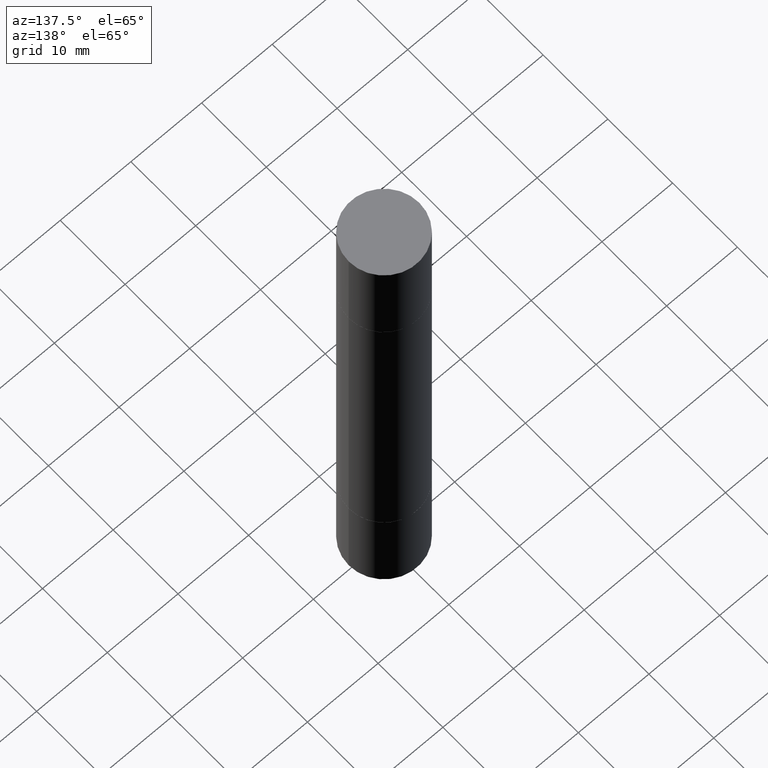
[diagram: clean part render]
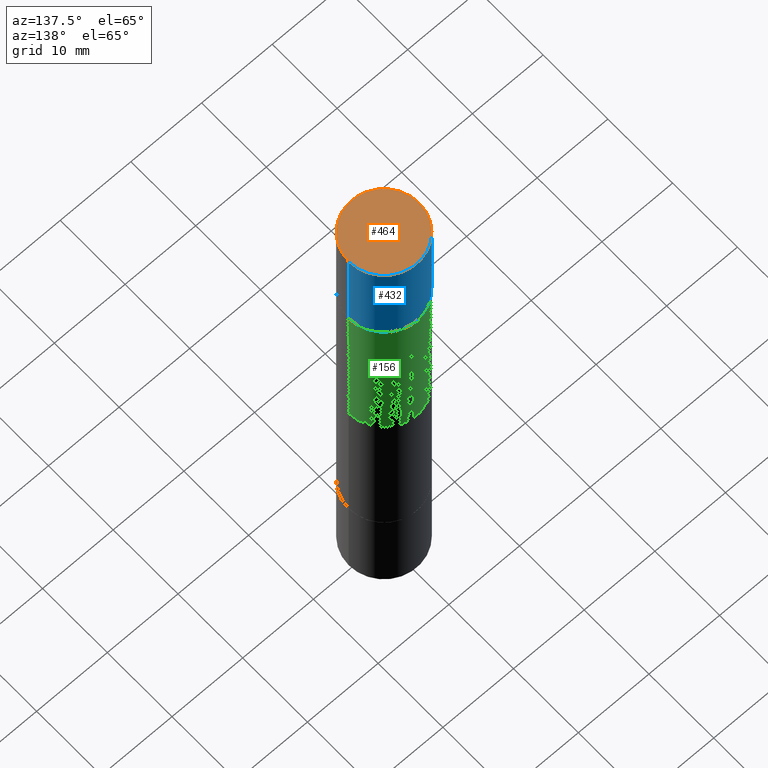
[diagram: same view with three faces highlighted in distinct colors, each labeled with its STEP entity id]
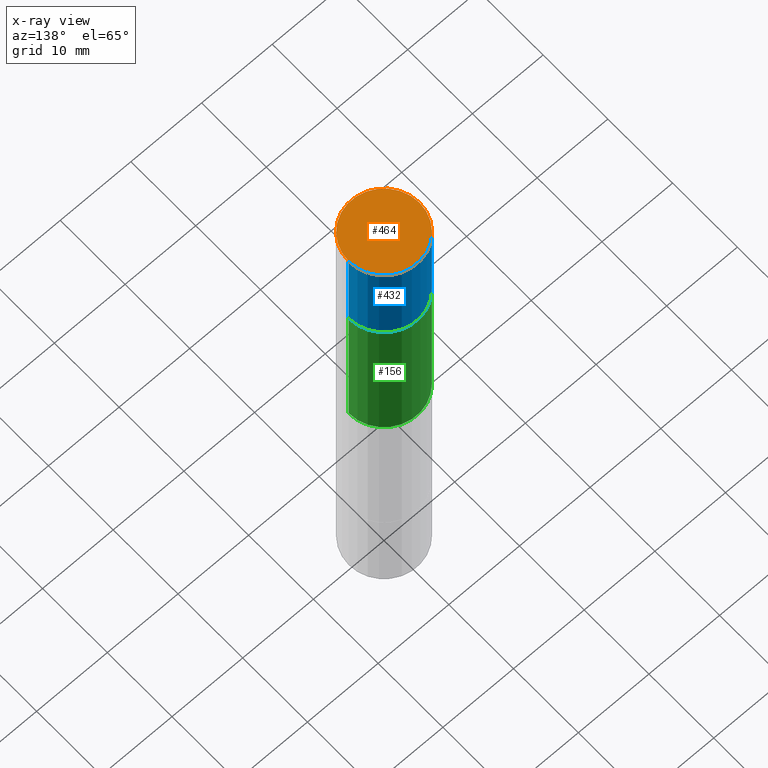
[diagram: x-ray of the same camera — body ghosted, the three highlighted faces saturated]
A machine part, auxiliary view with three faces highlighted in distinct colors.
The next image is the same camera in x-ray (body ghosted, the three faces saturated) — at least one of them is partly hidden behind the body in this view.
Their STEP definitions:

[orange] entity #464 — the highlighted planar face has unit normal (0, 0, 1).
#97 = CARTESIAN_POINT ( 'NONE',  ( 0.1968500000000000250, -1.372515848155552113E-15, 5.463695987328526437E-16 ) ) ;
#110 = VERTEX_POINT ( 'NONE', #193 ) ;
#111 = DIRECTION ( 'NONE',  ( 2.438088387897959769E-29, 3.492890411551753071E-15, 1.000000000000000000 ) ) ;
#121 = EDGE_LOOP ( 'NONE', ( #541, #170 ) ) ;
#124 = CARTESIAN_POINT ( 'NONE',  ( 7.220980290903470182E-29, 2.080354946989631982E-18, 5.463695987328526437E-16 ) ) ;
#160 = AXIS2_PLACEMENT_3D ( 'NONE', #124, #664, #601 ) ;
#170 = ORIENTED_EDGE ( 'NONE', *, *, #424, .T. ) ;
#193 = CARTESIAN_POINT ( 'NONE',  ( -0.1968500000000000250, 3.899287883846529545E-16, 5.463695987328561936E-16 ) ) ;
#258 = DIRECTION ( 'NONE',  ( 2.445468806185136597E-29, 3.492890411551752677E-15, 1.000000000000000000 ) ) ;
#309 = DIRECTION ( 'NONE',  ( -1.000000000000000000, 6.982962677686265922E-15, -9.839502134516470631E-33 ) ) ;
#312 = PLANE ( 'NONE',  #375 ) ;
#375 = AXIS2_PLACEMENT_3D ( 'NONE', #480, #111, #309 ) ;
#389 = VERTEX_POINT ( 'NONE', #97 ) ;
#417 = FACE_OUTER_BOUND ( 'NONE', #121, .T. ) ;
#424 = EDGE_CURVE ( 'NONE', #110, #389, #560, .T. ) ;
#464 = ADVANCED_FACE ( 'NONE', ( #417 ), #312, .T. ) ;
#465 = DIRECTION ( 'NONE',  ( 1.000000000000000000, -6.982962677686265922E-15, 0.000000000000000000 ) ) ;
#480 = CARTESIAN_POINT ( 'NONE',  ( 1.374596203102613789E-15, 0.1968500000000000250, -5.463695987328526437E-16 ) ) ;
#497 = AXIS2_PLACEMENT_3D ( 'NONE', #586, #258, #465 ) ;
#541 = ORIENTED_EDGE ( 'NONE', *, *, #622, .T. ) ;
#560 = CIRCLE ( 'NONE', #497, 0.1968500000000000250 ) ;
#586 = CARTESIAN_POINT ( 'NONE',  ( 7.220980290903470182E-29, 2.080354946989631982E-18, 5.463695987328526437E-16 ) ) ;
#593 = CIRCLE ( 'NONE', #160, 0.1968500000000000250 ) ;
#601 = DIRECTION ( 'NONE',  ( 1.000000000000000000, -6.982962677686265922E-15, 0.000000000000000000 ) ) ;
#622 = EDGE_CURVE ( 'NONE', #389, #110, #593, .T. ) ;
#664 = DIRECTION ( 'NONE',  ( 2.445468806185136597E-29, 3.492890411551752677E-15, 1.000000000000000000 ) ) ;

[blue] entity #432 — the highlighted cylindrical surface (partial cylindrical patch) has radius 5 mm, axis along (-0, -0, -1).
#6 = ORIENTED_EDGE ( 'NONE', *, *, #622, .F. ) ;
#93 = ORIENTED_EDGE ( 'NONE', *, *, #359, .T. ) ;
#97 = CARTESIAN_POINT ( 'NONE',  ( 0.1968500000000000250, -1.372515848155552113E-15, 5.463695987328526437E-16 ) ) ;
#102 = LINE ( 'NONE', #142, #274 ) ;
#110 = VERTEX_POINT ( 'NONE', #193 ) ;
#124 = CARTESIAN_POINT ( 'NONE',  ( 7.220980290903470182E-29, 2.080354946989631982E-18, 5.463695987328526437E-16 ) ) ;
#142 = CARTESIAN_POINT ( 'NONE',  ( 0.1968500000000000250, -1.168632265538556569E-14, -2.952799999999998981 ) ) ;
#160 = AXIS2_PLACEMENT_3D ( 'NONE', #124, #664, #601 ) ;
#193 = CARTESIAN_POINT ( 'NONE',  ( -0.1968500000000000250, 3.899287883846529545E-16, 5.463695987328561936E-16 ) ) ;
#216 = DIRECTION ( 'NONE',  ( -2.445468806185136597E-29, -3.492890411551752677E-15, -1.000000000000000000 ) ) ;
#218 = EDGE_CURVE ( 'NONE', #467, #382, #650, .T. ) ;
#227 = EDGE_CURVE ( 'NONE', #110, #382, #287, .T. ) ;
#233 = CARTESIAN_POINT ( 'NONE',  ( -0.1968500000000000250, -8.961237421421697861E-15, -2.952799999999998981 ) ) ;
#270 = CARTESIAN_POINT ( 'NONE',  ( 0.1968500000000000250, -3.297797043002877729E-15, -0.5511999999999995792 ) ) ;
#271 = ORIENTED_EDGE ( 'NONE', *, *, #227, .F. ) ;
#274 = VECTOR ( 'NONE', #630, 39.37007874015748143 ) ;
#287 = LINE ( 'NONE', #233, #537 ) ;
#316 = CYLINDRICAL_SURFACE ( 'NONE', #591, 0.1968500000000000250 ) ;
#330 = CARTESIAN_POINT ( 'NONE',  ( 5.873037884934223228E-29, -1.923200839900336120E-15, -0.5511999999999995792 ) ) ;
#353 = AXIS2_PLACEMENT_3D ( 'NONE', #330, #556, #487 ) ;
#359 = EDGE_CURVE ( 'NONE', #389, #467, #102, .T. ) ;
#382 = VERTEX_POINT ( 'NONE', #573 ) ;
#389 = VERTEX_POINT ( 'NONE', #97 ) ;
#425 = DIRECTION ( 'NONE',  ( 1.000000000000000000, -6.982962677686267499E-15, 0.000000000000000000 ) ) ;
#432 = ADVANCED_FACE ( 'NONE', ( #646 ), #316, .T. ) ;
#467 = VERTEX_POINT ( 'NONE', #270 ) ;
#487 = DIRECTION ( 'NONE',  ( 1.000000000000000000, -6.982962677686267499E-15, 0.000000000000000000 ) ) ;
#500 = ORIENTED_EDGE ( 'NONE', *, *, #218, .T. ) ;
#537 = VECTOR ( 'NONE', #610, 39.37007874015748143 ) ;
#540 = CARTESIAN_POINT ( 'NONE',  ( 0.000000000000000000, -1.031172645228302408E-14, -2.952799999999998981 ) ) ;
#556 = DIRECTION ( 'NONE',  ( 2.445468806185136597E-29, 3.492890411551752677E-15, 1.000000000000000000 ) ) ;
#573 = CARTESIAN_POINT ( 'NONE',  ( -0.1968500000000000250, 3.899287883846532010E-16, -0.5511999999999995792 ) ) ;
#591 = AXIS2_PLACEMENT_3D ( 'NONE', #540, #216, #425 ) ;
#593 = CIRCLE ( 'NONE', #160, 0.1968500000000000250 ) ;
#601 = DIRECTION ( 'NONE',  ( 1.000000000000000000, -6.982962677686265922E-15, 0.000000000000000000 ) ) ;
#610 = DIRECTION ( 'NONE',  ( -2.445468806185136877E-29, -3.492890411551753071E-15, -1.000000000000000000 ) ) ;
#622 = EDGE_CURVE ( 'NONE', #389, #110, #593, .T. ) ;
#627 = EDGE_LOOP ( 'NONE', ( #271, #6, #93, #500 ) ) ;
#630 = DIRECTION ( 'NONE',  ( -2.445468806185136877E-29, -3.492890411551753071E-15, -1.000000000000000000 ) ) ;
#646 = FACE_OUTER_BOUND ( 'NONE', #627, .T. ) ;
#650 = CIRCLE ( 'NONE', #353, 0.1968500000000000250 ) ;
#664 = DIRECTION ( 'NONE',  ( 2.445468806185136597E-29, 3.492890411551752677E-15, 1.000000000000000000 ) ) ;

[green] entity #156 — the highlighted cylindrical surface (partial cylindrical patch) has radius 5 mm, axis along (-0, -0, -1).
#27 = DIRECTION ( 'NONE',  ( 1.000000000000000000, -6.982962677686267499E-15, 0.000000000000000000 ) ) ;
#32 = ORIENTED_EDGE ( 'NONE', *, *, #242, .T. ) ;
#37 = DIRECTION ( 'NONE',  ( 2.445468806185136597E-29, 3.492890411551752677E-15, 1.000000000000000000 ) ) ;
#52 = CARTESIAN_POINT ( 'NONE',  ( 0.1968499999999998307, -1.168632265538556411E-14, -2.952799999999998981 ) ) ;
#65 = CIRCLE ( 'NONE', #421, 0.1968500000000000250 ) ;
#72 = CARTESIAN_POINT ( 'NONE',  ( -0.1968500000000000250, -5.762046994505618475E-16, -0.5521999999999996911 ) ) ;
#81 = VERTEX_POINT ( 'NONE', #269 ) ;
#94 = CIRCLE ( 'NONE', #212, 0.1968499999999998307 ) ;
#147 = ORIENTED_EDGE ( 'NONE', *, *, #171, .F. ) ;
#156 = ADVANCED_FACE ( 'NONE', ( #657 ), #333, .T. ) ;
#163 = VERTEX_POINT ( 'NONE', #72 ) ;
#165 = DIRECTION ( 'NONE',  ( 0.000000000000000000, 1.000000000000000000, -4.163344669033678790E-15 ) ) ;
#171 = EDGE_CURVE ( 'NONE', #163, #543, #660, .T. ) ;
#176 = DIRECTION ( 'NONE',  ( -2.445468806185136597E-29, -3.492890411551752677E-15, -1.000000000000000000 ) ) ;
#180 = VECTOR ( 'NONE', #463, 39.37007874015748143 ) ;
#194 = VECTOR ( 'NONE', #603, 39.37007874015748143 ) ;
#212 = AXIS2_PLACEMENT_3D ( 'NONE', #370, #260, #165 ) ;
#242 = EDGE_CURVE ( 'NONE', #81, #438, #255, .T. ) ;
#255 = LINE ( 'NONE', #52, #180 ) ;
#260 = DIRECTION ( 'NONE',  ( -0.000000000000000000, -3.492185875197449130E-15, -1.000000000000000000 ) ) ;
#269 = CARTESIAN_POINT ( 'NONE',  ( 0.1968500000000000250, -3.301289933414429871E-15, -0.5521999999999996911 ) ) ;
#272 = AXIS2_PLACEMENT_3D ( 'NONE', #667, #176, #397 ) ;
#333 = CYLINDRICAL_SURFACE ( 'NONE', #272, 0.1968499999999998307 ) ;
#352 = ORIENTED_EDGE ( 'NONE', *, *, #574, .F. ) ;
#370 = CARTESIAN_POINT ( 'NONE',  ( 3.610490145451734531E-29, -5.154823048668018475E-15, -1.476399999999999491 ) ) ;
#397 = DIRECTION ( 'NONE',  ( 1.000000000000000000, -6.982962677686264344E-15, 0.000000000000000000 ) ) ;
#421 = AXIS2_PLACEMENT_3D ( 'NONE', #561, #37, #27 ) ;
#438 = VERTEX_POINT ( 'NONE', #475 ) ;
#463 = DIRECTION ( 'NONE',  ( -2.445468806185136877E-29, -3.492890411551753071E-15, -1.000000000000000000 ) ) ;
#471 = ORIENTED_EDGE ( 'NONE', *, *, #488, .F. ) ;
#475 = CARTESIAN_POINT ( 'NONE',  ( 0.1968499999999998307, -4.915354592592491624E-15, -1.476399999999999491 ) ) ;
#488 = EDGE_CURVE ( 'NONE', #543, #438, #94, .T. ) ;
#534 = EDGE_LOOP ( 'NONE', ( #147, #352, #32, #471 ) ) ;
#543 = VERTEX_POINT ( 'NONE', #546 ) ;
#546 = CARTESIAN_POINT ( 'NONE',  ( -0.1968499999999998307, -2.190269358628626559E-15, -1.476399999999999491 ) ) ;
#561 = CARTESIAN_POINT ( 'NONE',  ( 5.870592416128037625E-29, -1.926693730311889446E-15, -0.5521999999999996911 ) ) ;
#574 = EDGE_CURVE ( 'NONE', #81, #163, #65, .T. ) ;
#603 = DIRECTION ( 'NONE',  ( -2.445468806185136877E-29, -3.492890411551753071E-15, -1.000000000000000000 ) ) ;
#607 = CARTESIAN_POINT ( 'NONE',  ( -0.1968499999999998307, -8.961237421421701017E-15, -2.952799999999998981 ) ) ;
#657 = FACE_OUTER_BOUND ( 'NONE', #534, .T. ) ;
#660 = LINE ( 'NONE', #607, #194 ) ;
#667 = CARTESIAN_POINT ( 'NONE',  ( 0.000000000000000000, -1.031172645228302408E-14, -2.952799999999998981 ) ) ;